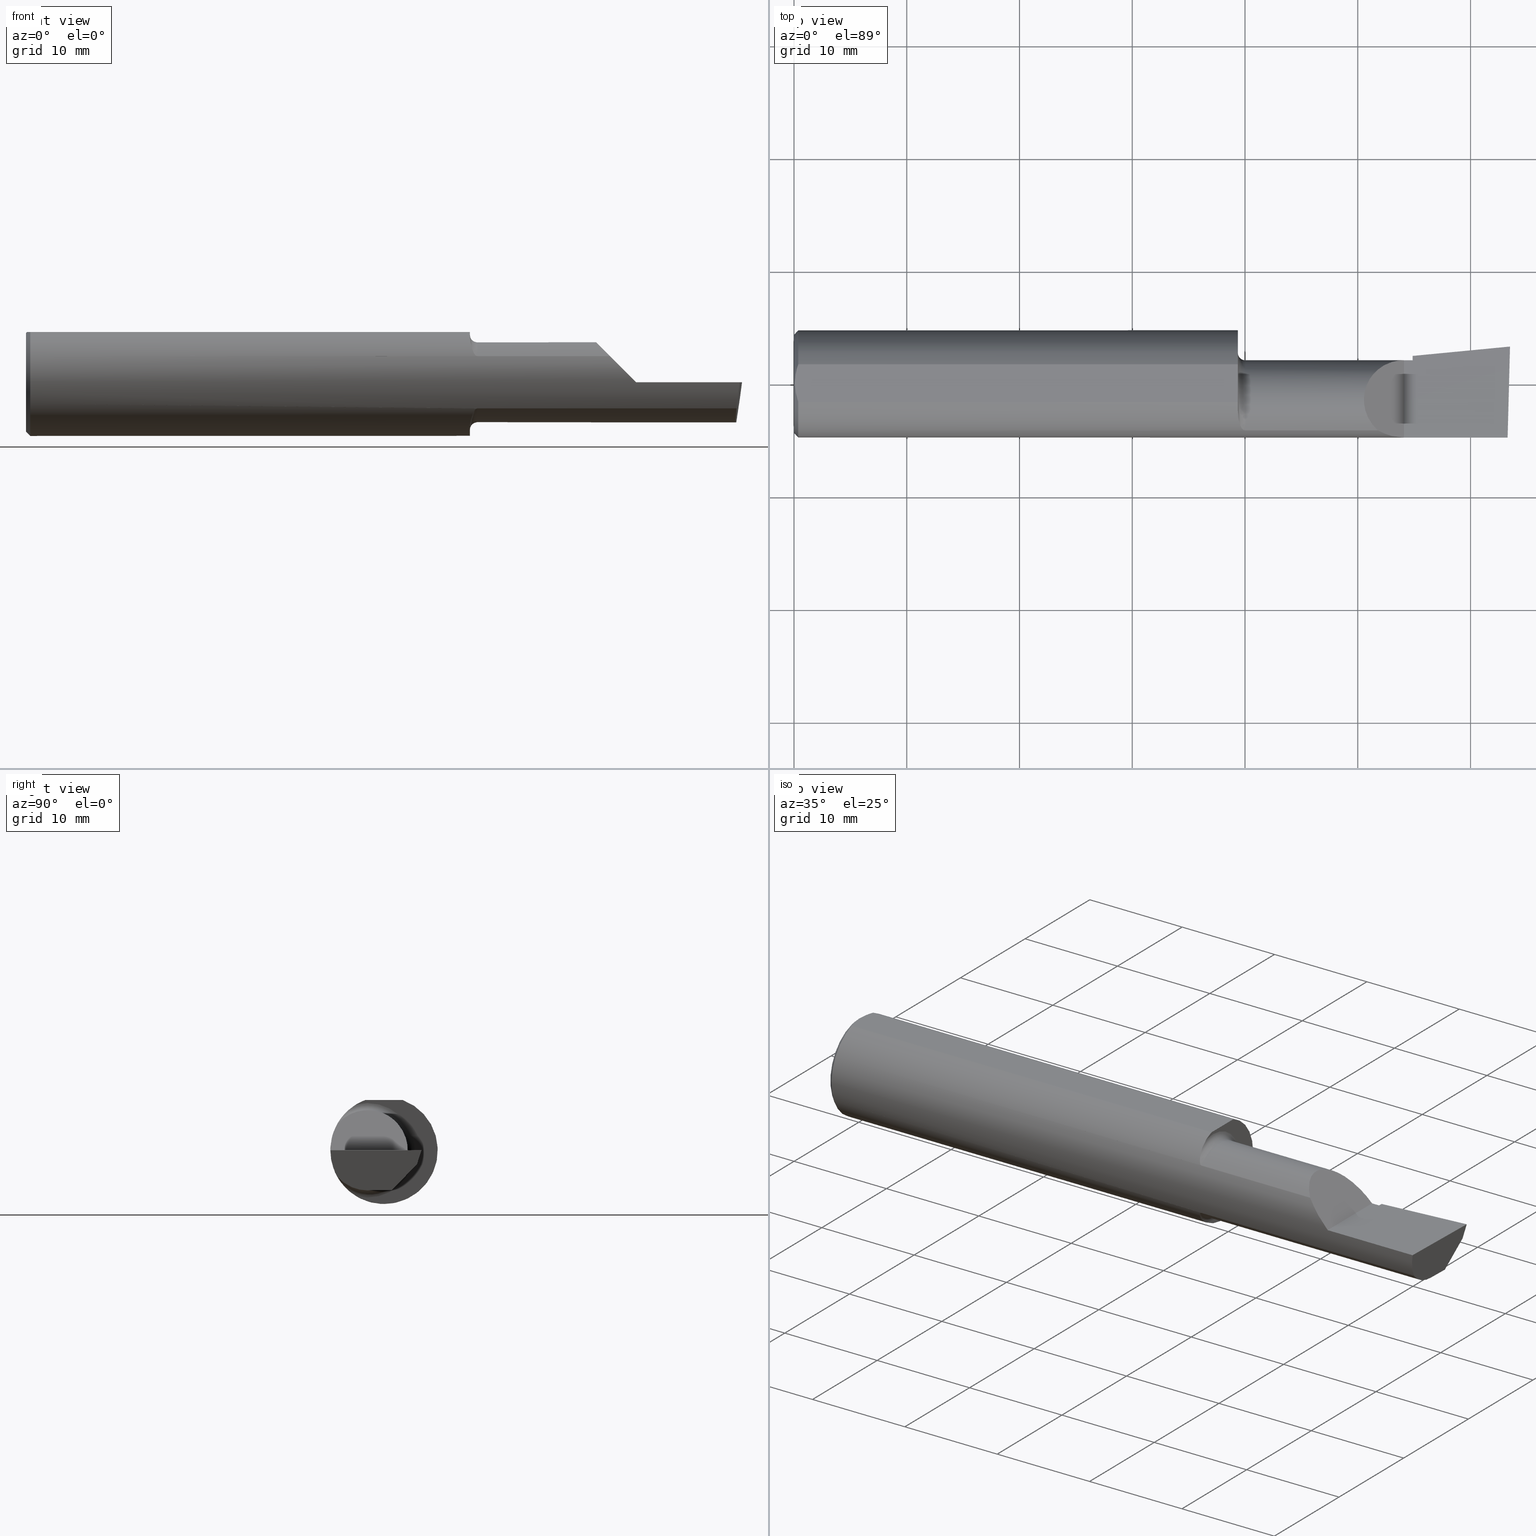
[diagram: canonical four-view strip — front | top / right | iso, engineering-drawing reading convention]
A machine part, canonical four-view strip (front | top / right | iso — engineering-drawing reading convention). The complete STEP part file that produces these views, byte-faithful:
ISO-10303-21;
HEADER;
FILE_DESCRIPTION (( 'STEP AP214' ),
    '1' );
FILE_NAME ('B320900.STEP',
    '2020-05-07T19:09:22',
    ( '' ),
    ( '' ),
    'SwSTEP 2.0',
    'SolidWorks 2018',
    '' );
FILE_SCHEMA (( 'AUTOMOTIVE_DESIGN' ));
ENDSEC;

DATA;
#1 = EDGE_CURVE ( 'NONE', #158, #584, #3, .T. ) ;
#2 = LINE ( 'NONE', #202, #269 ) ;
#3 = B_SPLINE_CURVE_WITH_KNOTS ( 'NONE', 3,
 ( #91, #258, #253, #543, #369, #333, #338, #256, #131, #290, #138, #69, #579, #332 ),
 .UNSPECIFIED., .F., .F.,
 ( 4, 2, 2, 2, 2, 2, 4 ),
 ( 1.968340875534775581E-07, 0.0001667114270246267561, 0.0003332260199617000421, 0.0006662552058358466684, 0.001332313577584133416, 0.001998371949332420489, 0.002664430321080706911 ),
 .UNSPECIFIED. ) ;
#4 = CARTESIAN_POINT ( 'NONE',  ( 2.160000000000000142, -0.05739999999999999963, 0.0000000000000000000 ) ) ;
#5 = CARTESIAN_POINT ( 'NONE',  ( 1.550000000000000044, -0.09715400696864107122, 0.1601908905959925078 ) ) ;
#6 = CARTESIAN_POINT ( 'NONE',  ( 1.556142321956750507, -0.1426151417460928550, 0.1217894822571234659 ) ) ;
#7 = CARTESIAN_POINT ( 'NONE',  ( 1.563764108097883687, -0.1573043405450770260, 0.1018329020719638545 ) ) ;
#8 = CARTESIAN_POINT ( 'NONE',  ( 1.558072954143139732, -0.1479074971576196940, 0.1152872342625233804 ) ) ;
#9 = VERTEX_POINT ( 'NONE', #31 ) ;
#10 = AXIS2_PLACEMENT_3D ( 'NONE', #268, #404, #108 ) ;
#11 = FACE_OUTER_BOUND ( 'NONE', #177, .T. ) ;
#12 = CARTESIAN_POINT ( 'NONE',  ( 2.160000000000000142, 0.09791172361283667636, 0.0000000000000000000 ) ) ;
#13 = DIRECTION ( 'NONE',  ( -0.0000000000000000000, 1.000000000000000000, -0.0000000000000000000 ) ) ;
#14 = ORIENTED_EDGE ( 'NONE', *, *, #209, .T. ) ;
#15 = CARTESIAN_POINT ( 'NONE',  ( 2.160000000000000142, 0.09791172361284176950, 3.244069492476312449E-16 ) ) ;
#16 = DIRECTION ( 'NONE',  ( -0.7071067811865511255, 0.0000000000000000000, 0.7071067811865437980 ) ) ;
#17 = AXIS2_PLACEMENT_3D ( 'NONE', #548, #458, #78 ) ;
#18 = CARTESIAN_POINT ( 'NONE',  ( 1.568001859868117132, -0.1612625562479369223, 0.09537826053888208422 ) ) ;
#19 = VECTOR ( 'NONE', #274, 39.37007874015748143 ) ;
#20 = LINE ( 'NONE', #327, #72 ) ;
#21 = DIRECTION ( 'NONE',  ( 0.0000000000000000000, -1.000000000000000000, 1.776356839400250465E-15 ) ) ;
#22 = ORIENTED_EDGE ( 'NONE', *, *, #263, .T. ) ;
#23 = EDGE_CURVE ( 'NONE', #540, #490, #20, .T. ) ;
#24 = ORIENTED_EDGE ( 'NONE', *, *, #263, .F. ) ;
#25 = ORIENTED_EDGE ( 'NONE', *, *, #549, .T. ) ;
#26 = MECHANICAL_DESIGN_GEOMETRIC_PRESENTATION_REPRESENTATION (  '', ( #379 ), #212 ) ;
#27 = DIRECTION ( 'NONE',  ( -4.858719700838190352E-34, -8.537024980200821325E-17, 1.000000000000000000 ) ) ;
#28 = CARTESIAN_POINT ( 'NONE',  ( 2.160000000000000142, 0.09791172361283667636, 0.0000000000000000000 ) ) ;
#29 = ORIENTED_EDGE ( 'NONE', *, *, #135, .T. ) ;
#30 = PLANE ( 'NONE',  #398 ) ;
#31 = CARTESIAN_POINT ( 'NONE',  ( 1.550000000000000044, -0.06597272163553659363, 0.1753499999999999781 ) ) ;
#32 = EDGE_LOOP ( 'NONE', ( #101, #382, #136, #478, #587 ) ) ;
#33 = ADVANCED_FACE ( 'NONE', ( #75 ), #46, .F. ) ;
#34 = PRESENTATION_LAYER_ASSIGNMENT (  '', '', ( #379 ) ) ;
#35 = DIRECTION ( 'NONE',  ( 4.755568962650852027E-18, -0.6963153109074922131, -0.7177360153954949196 ) ) ;
#36 = AXIS2_PLACEMENT_3D ( 'NONE', #451, #186, #229 ) ;
#37 = ADVANCED_FACE ( 'NONE', ( #64 ), #387, .T. ) ;
#38 = VERTEX_POINT ( 'NONE', #295 ) ;
#39 = LINE ( 'NONE', #94, #19 ) ;
#40 = CARTESIAN_POINT ( 'NONE',  ( 1.566855994529494422, -0.1603175578889967923, 0.09696363432848481567 ) ) ;
#41 =( BOUNDED_CURVE ( )  B_SPLINE_CURVE ( 3, ( #470, #481, #486, #488 ),
 .UNSPECIFIED., .F., .T. ) 
 B_SPLINE_CURVE_WITH_KNOTS ( ( 4, 4 ),
 ( 0.8516985021657653698, 1.360746882515200484 ),
 .UNSPECIFIED. ) 
 CURVE ( )  GEOMETRIC_REPRESENTATION_ITEM ( )  RATIONAL_B_SPLINE_CURVE ( ( 1.000000000000000000, 0.9785221379938656705, 0.9785221379938656705, 1.000000000000000000 ) ) 
 REPRESENTATION_ITEM ( '' )  );
#42 = B_SPLINE_CURVE_WITH_KNOTS ( 'NONE', 3,
 ( #322, #304, #440, #442, #453, #462 ),
 .UNSPECIFIED., .F., .F.,
 ( 4, 2, 4 ),
 ( 0.003480013901590607410, 0.004330767971208083697, 0.005181522040825559984 ),
 .UNSPECIFIED. ) ;
#43 = DIRECTION ( 'NONE',  ( 0.0000000000000000000, -1.438723400918613551E-16, -1.000000000000000000 ) ) ;
#44 = ADVANCED_FACE ( 'NONE', ( #48 ), #30, .T. ) ;
#45 = EDGE_LOOP ( 'NONE', ( #590, #421, #452, #219, #190, #66 ) ) ;
#46 = TOROIDAL_SURFACE ( 'NONE', #17, 0.1650500000000000023, 0.02499999999999994588 ) ;
#47 = ADVANCED_FACE ( 'NONE', ( #172 ), #56, .F. ) ;
#48 = FACE_OUTER_BOUND ( 'NONE', #591, .T. ) ;
#49 = ORIENTED_EDGE ( 'NONE', *, *, #313, .F. ) ;
#50 = CLOSED_SHELL ( 'NONE', ( #165, #37, #160, #96, #115, #155, #207, #107, #47, #147, #33, #150, #110, #44, #88, #102, #99 ) ) ;
#51 = PLANE ( 'NONE',  #417 ) ;
#52 = LINE ( 'NONE', #565, #595 ) ;
#53 = EDGE_CURVE ( 'NONE', #376, #537, #286, .T. ) ;
#54 = DIRECTION ( 'NONE',  ( -0.02617694830779365364, -0.9996573249755593693, -8.535148296544462419E-17 ) ) ;
#55 = ORIENTED_EDGE ( 'NONE', *, *, #427, .T. ) ;
#56 = PLANE ( 'NONE',  #517 ) ;
#57 = AXIS2_PLACEMENT_3D ( 'NONE', #436, #142, #130 ) ;
#58 = CIRCLE ( 'NONE', #528, 0.1400499999999999801 ) ;
#59 = LINE ( 'NONE', #507, #109 ) ;
#60 = CARTESIAN_POINT ( 'NONE',  ( 1.553025912205683312, -0.1310442973014112888, 0.1341609063345044761 ) ) ;
#61 = COLOUR_RGB ( '',0.7529411764705882248, 0.7529411764705882248, 0.7529411764705882248 ) ;
#62 = CARTESIAN_POINT ( 'NONE',  ( 0.5470260790800316464, -0.05740000000000000657, 2.701812985571356346E-16 ) ) ;
#63 = EDGE_CURVE ( 'NONE', #328, #490, #533, .T. ) ;
#64 = FACE_OUTER_BOUND ( 'NONE', #569, .T. ) ;
#65 = CARTESIAN_POINT ( 'NONE',  ( 2.129999999999999893, -0.2500000000000000555, 1.065442715258197396E-16 ) ) ;
#66 = ORIENTED_EDGE ( 'NONE', *, *, #477, .F. ) ;
#67 = ORIENTED_EDGE ( 'NONE', *, *, #427, .F. ) ;
#68 = CARTESIAN_POINT ( 'NONE',  ( 2.477889026591898247, -0.05682100378451882677, -0.1400500000000000633 ) ) ;
#69 = CARTESIAN_POINT ( 'NONE',  ( 1.550384441902395327, -0.1115101367984837610, -0.1507946173152225067 ) ) ;
#70 = DIRECTION ( 'NONE',  ( -1.000000000000000000, -0.0000000000000000000, -0.0000000000000000000 ) ) ;
#71 = CARTESIAN_POINT ( 'NONE',  ( 2.160000000000000142, -0.2500000000000000555, 1.034430765243970311E-16 ) ) ;
#72 = VECTOR ( 'NONE', #430, 39.37007874015748854 ) ;
#73 = DIRECTION ( 'NONE',  ( 4.755568962650852027E-18, -0.6963153109074922131, -0.7177360153954949196 ) ) ;
#74 = VECTOR ( 'NONE', #288, 39.37007874015748143 ) ;
#75 = FACE_OUTER_BOUND ( 'NONE', #392, .T. ) ;
#76 = AXIS2_PLACEMENT_3D ( 'NONE', #450, #43, #104 ) ;
#77 = CARTESIAN_POINT ( 'NONE',  ( 2.160000000000000142, 0.06382066673065316109, -0.06931012851386068874 ) ) ;
#78 = DIRECTION ( 'NONE',  ( 6.829619984160658816E-18, -1.000000000000000000, 0.0000000000000000000 ) ) ;
#79 = ORIENTED_EDGE ( 'NONE', *, *, #310, .T. ) ;
#80 = LINE ( 'NONE', #568, #242 ) ;
#81 = CARTESIAN_POINT ( 'NONE',  ( 2.129999999999999893, -0.2500000000000000555, 1.065442715258197396E-16 ) ) ;
#82 = VECTOR ( 'NONE', #586, 39.37007874015748854 ) ;
#83 = CARTESIAN_POINT ( 'NONE',  ( 2.129999999999999893, 0.08264999999999983471, 1.065442715258197396E-16 ) ) ;
#84 = LINE ( 'NONE', #71, #596 ) ;
#85 = PRESENTATION_STYLE_ASSIGNMENT (( #506 ) ) ;
#86 = VERTEX_POINT ( 'NONE', #502 ) ;
#87 = EDGE_CURVE ( 'NONE', #401, #328, #389, .T. ) ;
#88 = ADVANCED_FACE ( 'NONE', ( #164 ), #422, .T. ) ;
#89 = ORIENTED_EDGE ( 'NONE', *, *, #97, .T. ) ;
#90 = DIRECTION ( 'NONE',  ( 6.829619984160658046E-18, -1.000000000000000000, 0.0000000000000000000 ) ) ;
#91 = CARTESIAN_POINT ( 'NONE',  ( 1.574999999999999956, -0.1635956445993029529, -0.09130436773856180632 ) ) ;
#92 = ORIENTED_EDGE ( 'NONE', *, *, #63, .T. ) ;
#93 = CARTESIAN_POINT ( 'NONE',  ( 2.160000000000000142, 0.06495571228477940717, -0.06814016562413301170 ) ) ;
#94 = CARTESIAN_POINT ( 'NONE',  ( 1.867500000000000160, -0.1635956445993030639, -0.09130436773856169530 ) ) ;
#95 = DIRECTION ( 'NONE',  ( -1.000000000000000000, -6.829619984160658046E-18, 0.0000000000000000000 ) ) ;
#96 = ADVANCED_FACE ( 'NONE', ( #599 ), #244, .F. ) ;
#97 = EDGE_CURVE ( 'NONE', #271, #474, #139, .T. ) ;
#98 = DIRECTION ( 'NONE',  ( 1.000000000000000000, 6.829619984160658046E-18, 0.0000000000000000000 ) ) ;
#99 = ADVANCED_FACE ( 'NONE', ( #277 ), #51, .F. ) ;
#100 = CARTESIAN_POINT ( 'NONE',  ( 1.570903862568969078, -0.1628809688430619407, 0.09258733509388515637 ) ) ;
#101 = ORIENTED_EDGE ( 'NONE', *, *, #357, .F. ) ;
#102 = ADVANCED_FACE ( 'NONE', ( #585 ), #416, .F. ) ;
#103 = ORIENTED_EDGE ( 'NONE', *, *, #310, .F. ) ;
#104 = DIRECTION ( 'NONE',  ( 0.0000000000000000000, 1.000000000000000000, -1.438723400918613551E-16 ) ) ;
#105 = CARTESIAN_POINT ( 'NONE',  ( 1.574999999999999956, -0.05740000000000000657, 0.0000000000000000000 ) ) ;
#106 = ORIENTED_EDGE ( 'NONE', *, *, #441, .F. ) ;
#107 = ADVANCED_FACE ( 'NONE', ( #383 ), #176, .F. ) ;
#108 = DIRECTION ( 'NONE',  ( 0.0000000000000000000, 0.0000000000000000000, -1.000000000000000000 ) ) ;
#109 = VECTOR ( 'NONE', #532, 39.37007874015748143 ) ;
#110 = ADVANCED_FACE ( 'NONE', ( #334 ), #126, .T. ) ;
#111 = B_SPLINE_CURVE_WITH_KNOTS ( 'NONE', 3,
 ( #335, #292, #267, #340, #349, #388 ),
 .UNSPECIFIED., .F., .F.,
 ( 4, 2, 4 ),
 ( 0.001779942938356815062, 0.002629978419973711019, 0.003480013901590607410 ),
 .UNSPECIFIED. ) ;
#112 = DIRECTION ( 'NONE',  ( 1.000000000000000000, 6.829619984160658046E-18, 0.0000000000000000000 ) ) ;
#113 = CIRCLE ( 'NONE', #435, 0.1723499999999996424 ) ;
#114 = DIRECTION ( 'NONE',  ( -1.000000000000000000, -6.829619984160658046E-18, -0.0000000000000000000 ) ) ;
#115 = ADVANCED_FACE ( 'NONE', ( #395 ), #372, .T. ) ;
#116 = ORIENTED_EDGE ( 'NONE', *, *, #87, .T. ) ;
#117 = UNCERTAINTY_MEASURE_WITH_UNIT (LENGTH_MEASURE( 1.000000000000000082E-05 ), #420, 'distance_accuracy_value', 'NONE');
#118 = DIRECTION ( 'NONE',  ( -6.829619984160658816E-18, 1.000000000000000000, 7.059994452165177242E-34 ) ) ;
#119 = CARTESIAN_POINT ( 'NONE',  ( 2.500000000000000000, -0.2500000000000000555, 6.829619984160658046E-17 ) ) ;
#120 = EDGE_LOOP ( 'NONE', ( #425, #497, #431, #588, #246 ) ) ;
#121 = DIRECTION ( 'NONE',  ( 0.0000000000000000000, -1.000000000000000000, 0.0000000000000000000 ) ) ;
#122 = ORIENTED_EDGE ( 'NONE', *, *, #381, .T. ) ;
#123 = LINE ( 'NONE', #306, #428 ) ;
#124 = ORIENTED_EDGE ( 'NONE', *, *, #529, .F. ) ;
#125 = DIRECTION ( 'NONE',  ( 1.000000000000000000, 0.0000000000000000000, 0.0000000000000000000 ) ) ;
#126 = CYLINDRICAL_SURFACE ( 'NONE', #346, 0.1400499999999999801 ) ;
#127 = CARTESIAN_POINT ( 'NONE',  ( 1.550000000000000044, 0.2373500000000000332, 0.1753499999999999504 ) ) ;
#128 = CARTESIAN_POINT ( 'NONE',  ( 0.0000000000000000000, 0.0000000000000000000, 0.0000000000000000000 ) ) ;
#129 = VECTOR ( 'NONE', #205, 39.37007874015748143 ) ;
#130 = DIRECTION ( 'NONE',  ( 0.0000000000000000000, 0.0000000000000000000, 1.000000000000000000 ) ) ;
#131 = CARTESIAN_POINT ( 'NONE',  ( 1.556145841430604637, -0.1426194794824337253, -0.1217813759115470157 ) ) ;
#132 = AXIS2_PLACEMENT_3D ( 'NONE', #505, #513, #191 ) ;
#133 = CARTESIAN_POINT ( 'NONE',  ( 1.550000000000000044, -0.05740000000000000657, 0.0000000000000000000 ) ) ;
#134 = CARTESIAN_POINT ( 'NONE',  ( 2.511419111345317923, 0.1163922996227946260, -0.04999999999999999584 ) ) ;
#135 = EDGE_CURVE ( 'NONE', #567, #251, #356, .T. ) ;
#136 = ORIENTED_EDGE ( 'NONE', *, *, #374, .F. ) ;
#137 = DIRECTION ( 'NONE',  ( -1.000000000000000000, -6.829619984160658046E-18, -0.0000000000000000000 ) ) ;
#138 = CARTESIAN_POINT ( 'NONE',  ( 1.551903396790307310, -0.1248165254919059441, -0.1399798634953948739 ) ) ;
#139 = LINE ( 'NONE', #377, #174 ) ;
#140 = DIRECTION ( 'NONE',  ( 0.0000000000000000000, -1.000000000000000000, 0.0000000000000000000 ) ) ;
#141 = ORIENTED_EDGE ( 'NONE', *, *, #299, .T. ) ;
#142 = DIRECTION ( 'NONE',  ( -1.000000000000000000, -0.0000000000000000000, -0.0000000000000000000 ) ) ;
#143 = FILL_AREA_STYLE ('',( #194 ) ) ;
#144 = LINE ( 'NONE', #127, #446 ) ;
#145 = SURFACE_SIDE_STYLE ('',( #476 ) ) ;
#146 = SURFACE_STYLE_USAGE ( .BOTH. , #145 ) ;
#147 = ADVANCED_FACE ( 'NONE', ( #494 ), #169, .T. ) ;
#148 = AXIS2_PLACEMENT_3D ( 'NONE', #510, #511, #516 ) ;
#149 =( CONVERSION_BASED_UNIT ( 'INCH', #179 ) LENGTH_UNIT ( ) NAMED_UNIT ( #211 ) );
#150 = ADVANCED_FACE ( 'NONE', ( #386 ), #293, .T. ) ;
#151 =( NAMED_UNIT ( * ) PLANE_ANGLE_UNIT ( ) SI_UNIT ( $, .RADIAN. ) );
#152 = EDGE_CURVE ( 'NONE', #180, #251, #534, .T. ) ;
#153 = VECTOR ( 'NONE', #73, 39.37007874015748854 ) ;
#154 = DIRECTION ( 'NONE',  ( 0.9953961983671787417, 0.09584575252022459191, -1.028972571603813720E-16 ) ) ;
#155 = ADVANCED_FACE ( 'NONE', ( #405 ), #593, .F. ) ;
#156 =( NAMED_UNIT ( * ) SI_UNIT ( $, .STERADIAN. ) SOLID_ANGLE_UNIT ( ) );
#157 = AXIS2_PLACEMENT_3D ( 'NONE', #232, #181, #339 ) ;
#158 = VERTEX_POINT ( 'NONE', #214 ) ;
#159 = SURFACE_STYLE_FILL_AREA ( #457 ) ;
#160 = ADVANCED_FACE ( 'NONE', ( #547 ), #495, .T. ) ;
#161 = CARTESIAN_POINT ( 'NONE',  ( 2.160000000000000142, 0.06382066673065316109, -0.06931012851386068874 ) ) ;
#162 = CARTESIAN_POINT ( 'NONE',  ( 1.574999999999999956, -0.1635956445993027031, 0.09130436773856204224 ) ) ;
#163 = ORIENTED_EDGE ( 'NONE', *, *, #556, .F. ) ;
#164 = FACE_OUTER_BOUND ( 'NONE', #45, .T. ) ;
#165 = ADVANCED_FACE ( 'NONE', ( #282 ), #484, .T. ) ;
#166 = B_SPLINE_CURVE_WITH_KNOTS ( 'NONE', 3,
 ( #5, #391, #226, #255, #60, #6, #8, #359, #7, #40, #18, #100, #236, #445 ),
 .UNSPECIFIED., .F., .F.,
 ( 4, 2, 2, 2, 2, 2, 4 ),
 ( 0.0002471551878304213972, 0.0008987327522055595184, 0.001550310316580697694, 0.002201887880955836086, 0.002527676663143405607, 0.002690571054237190368, 0.002853465445330975996 ),
 .UNSPECIFIED. ) ;
#167 = LINE ( 'NONE', #161, #308 ) ;
#168 = DIRECTION ( 'NONE',  ( 4.755568962650852027E-18, -0.6963153109074922131, -0.7177360153954949196 ) ) ;
#169 = CONICAL_SURFACE ( 'NONE', #132, 0.1873499999999999888, 0.7853981633974602694 ) ;
#170 = ORIENTED_EDGE ( 'NONE', *, *, #394, .T. ) ;
#171 = CARTESIAN_POINT ( 'NONE',  ( 2.491672876940991710, -0.1873499999999999888, 6.915950918908297591E-17 ) ) ;
#172 = FACE_OUTER_BOUND ( 'NONE', #519, .T. ) ;
#173 = CARTESIAN_POINT ( 'NONE',  ( 2.500000000000000000, -0.05739999999999999963, -0.1400500000000000633 ) ) ;
#174 = VECTOR ( 'NONE', #250, 39.37007874015748854 ) ;
#175 = CARTESIAN_POINT ( 'NONE',  ( 2.038695632261437130, -0.1635956445993029529, 0.09130436773856188959 ) ) ;
#176 = PLANE ( 'NONE',  #368 ) ;
#177 = EDGE_LOOP ( 'NONE', ( #509, #89, #396, #355, #400, #390 ) ) ;
#178 = CARTESIAN_POINT ( 'NONE',  ( 2.160000000000000142, 0.09456875743780476795, -0.01088401009027229437 ) ) ;
#179 = LENGTH_MEASURE_WITH_UNIT ( LENGTH_MEASURE( 0.02539999999999999897 ), #188 );
#180 = VERTEX_POINT ( 'NONE', #162 ) ;
#181 = DIRECTION ( 'NONE',  ( -1.000000000000000000, -6.829619984160658046E-18, -0.0000000000000000000 ) ) ;
#182 = VERTEX_POINT ( 'NONE', #343 ) ;
#183 = CARTESIAN_POINT ( 'NONE',  ( 1.921229036482944075, -0.06260079402492431389, 0.2087709635170537925 ) ) ;
#184 = LINE ( 'NONE', #213, #74 ) ;
#185 = CARTESIAN_POINT ( 'NONE',  ( 1.975085956200449022, 0.08264999999999997349, 0.1549140437995493169 ) ) ;
#186 = DIRECTION ( 'NONE',  ( -1.000000000000000000, -6.829619984160658046E-18, 0.0000000000000000000 ) ) ;
#187 = EDGE_CURVE ( 'NONE', #86, #158, #39, .T. ) ;
#188 =( LENGTH_UNIT ( ) NAMED_UNIT ( * ) SI_UNIT ( $, .METRE. ) );
#189 = CARTESIAN_POINT ( 'NONE',  ( 2.129999999999999893, 0.08264999999999983471, 1.065442715258197396E-16 ) ) ;
#190 = ORIENTED_EDGE ( 'NONE', *, *, #303, .F. ) ;
#191 = DIRECTION ( 'NONE',  ( 0.0000000000000000000, 0.0000000000000000000, -1.000000000000000000 ) ) ;
#192 = FILL_AREA_STYLE_COLOUR ( '', #61 ) ;
#193 =( GEOMETRIC_REPRESENTATION_CONTEXT ( 3 ) GLOBAL_UNCERTAINTY_ASSIGNED_CONTEXT ( ( #117 ) ) GLOBAL_UNIT_ASSIGNED_CONTEXT ( ( #420, #371, #409 ) ) REPRESENTATION_CONTEXT ( 'NONE', 'WORKASPACE' ) );
#194 = FILL_AREA_STYLE_COLOUR ( '', #287 ) ;
#195 = AXIS2_PLACEMENT_3D ( 'NONE', #133, #137, #140 ) ;
#196 = VECTOR ( 'NONE', #577, 39.37007874015748143 ) ;
#197 = DIRECTION ( 'NONE',  ( -0.9922060308645608284, 0.02598182930461468559, 0.1218693434050591162 ) ) ;
#198 = ORIENTED_EDGE ( 'NONE', *, *, #394, .F. ) ;
#199 = CARTESIAN_POINT ( 'NONE',  ( 1.550000000000000044, 0.1076499999999999818, 0.0000000000000000000 ) ) ;
#200 = CIRCLE ( 'NONE', #195, 0.1650500000000000023 ) ;
#201 = ADVANCED_BREP_SHAPE_REPRESENTATION ( 'B320900', ( #301, #525 ), #193 ) ;
#202 = CARTESIAN_POINT ( 'NONE',  ( 3.377502344341257155E-32, -0.1873499999999999610, 3.267291166268304703E-16 ) ) ;
#203 = DIRECTION ( 'NONE',  ( -1.000000000000000000, -6.829619984160658046E-18, 0.0000000000000000000 ) ) ;
#204 = CIRCLE ( 'NONE', #323, 0.1873499999999999888 ) ;
#205 = DIRECTION ( 'NONE',  ( 2.005228508682076666E-18, -0.2936076258024060692, -0.9559260233253795702 ) ) ;
#206 = LINE ( 'NONE', #331, #399 ) ;
#207 = ADVANCED_FACE ( 'NONE', ( #11 ), #218, .F. ) ;
#208 = AXIS2_PLACEMENT_3D ( 'NONE', #270, #275, #260 ) ;
#209 = EDGE_CURVE ( 'NONE', #309, #401, #123, .T. ) ;
#210 = LINE ( 'NONE', #62, #336 ) ;
#211 = DIMENSIONAL_EXPONENTS ( 1.000000000000000000, 0.0000000000000000000, 0.0000000000000000000, 0.0000000000000000000, 0.0000000000000000000, 0.0000000000000000000, 0.0000000000000000000 ) ;
#212 =( GEOMETRIC_REPRESENTATION_CONTEXT ( 3 ) GLOBAL_UNCERTAINTY_ASSIGNED_CONTEXT ( ( #447 ) ) GLOBAL_UNIT_ASSIGNED_CONTEXT ( ( #149, #151, #156 ) ) REPRESENTATION_CONTEXT ( 'NONE', 'WORKASPACE' ) );
#213 = CARTESIAN_POINT ( 'NONE',  ( 0.0000000000000000000, -0.06597272163553657975, 0.1753499999999999781 ) ) ;
#214 = CARTESIAN_POINT ( 'NONE',  ( 1.574999999999999956, -0.1635956445993029529, -0.09130436773856180632 ) ) ;
#215 = ORIENTED_EDGE ( 'NONE', *, *, #411, .T. ) ;
#216 = VECTOR ( 'NONE', #385, 39.37007874015748143 ) ;
#217 = DIRECTION ( 'NONE',  ( 1.000000000000000000, 6.829619984160658046E-18, 0.0000000000000000000 ) ) ;
#218 = PLANE ( 'NONE',  #315 ) ;
#219 = ORIENTED_EDGE ( 'NONE', *, *, #209, .F. ) ;
#220 = CARTESIAN_POINT ( 'NONE',  ( 2.160000000000000142, -0.05739999999999999963, -0.1400500000000000633 ) ) ;
#221 = ORIENTED_EDGE ( 'NONE', *, *, #357, .T. ) ;
#222 = DIMENSIONAL_EXPONENTS ( 1.000000000000000000, 0.0000000000000000000, 0.0000000000000000000, 0.0000000000000000000, 0.0000000000000000000, 0.0000000000000000000, 0.0000000000000000000 ) ;
#223 = VECTOR ( 'NONE', #479, 39.37007874015748143 ) ;
#224 = EDGE_LOOP ( 'NONE', ( #443, #22, #170, #92 ) ) ;
#225 = AXIS2_PLACEMENT_3D ( 'NONE', #28, #95, #90 ) ;
#226 = CARTESIAN_POINT ( 'NONE',  ( 1.550383728133730266, -0.1114837668894149980, 0.1508119329971097933 ) ) ;
#227 = ORIENTED_EDGE ( 'NONE', *, *, #53, .T. ) ;
#228 = EDGE_CURVE ( 'NONE', #38, #180, #166, .T. ) ;
#229 = DIRECTION ( 'NONE',  ( 6.829619984160658046E-18, -1.000000000000000000, 0.0000000000000000000 ) ) ;
#230 = VECTOR ( 'NONE', #13, 39.37007874015748143 ) ;
#231 = CARTESIAN_POINT ( 'NONE',  ( 2.481080296960508580, -0.1635956445993030639, -0.09130436773856169530 ) ) ;
#232 = CARTESIAN_POINT ( 'NONE',  ( 2.160000000000000142, -0.05739999999999999963, 0.0000000000000000000 ) ) ;
#233 = CARTESIAN_POINT ( 'NONE',  ( 2.477925907309857401, -0.1365595166907236646, -0.1227499502647107360 ) ) ;
#234 = ORIENTED_EDGE ( 'NONE', *, *, #365, .F. ) ;
#235 = ORIENTED_EDGE ( 'NONE', *, *, #321, .T. ) ;
#236 = CARTESIAN_POINT ( 'NONE',  ( 1.572800914500664504, -0.1635956445997546749, 0.09130436773775280068 ) ) ;
#237 = EDGE_LOOP ( 'NONE', ( #554, #24, #272, #472, #345, #311 ) ) ;
#238 = CARTESIAN_POINT ( 'NONE',  ( 1.550000000000000044, -0.09715400696864107122, -0.1601908905959925078 ) ) ;
#239 = DIRECTION ( 'NONE',  ( -1.000000000000000000, -6.829619984160658046E-18, -0.0000000000000000000 ) ) ;
#240 = PRODUCT_DEFINITION_CONTEXT ( 'detailed design', #508, 'design' ) ;
#241 = CARTESIAN_POINT ( 'NONE',  ( 0.0000000000000000000, 0.0000000000000000000, 0.0000000000000000000 ) ) ;
#242 = VECTOR ( 'NONE', #570, 39.37007874015748143 ) ;
#243 = DIRECTION ( 'NONE',  ( -1.000000000000000000, -0.0000000000000000000, -0.0000000000000000000 ) ) ;
#244 = PLANE ( 'NONE',  #575 ) ;
#245 = DIRECTION ( 'NONE',  ( 0.0000000000000000000, 0.0000000000000000000, 1.000000000000000000 ) ) ;
#246 = ORIENTED_EDGE ( 'NONE', *, *, #455, .F. ) ;
#247 = DIRECTION ( 'NONE',  ( 6.829619984160658046E-18, -1.000000000000000000, 0.0000000000000000000 ) ) ;
#248 = CARTESIAN_POINT ( 'NONE',  ( 2.476787929832031221, -0.09887019258091189755, -0.1400500000000000078 ) ) ;
#249 = AXIS2_PLACEMENT_3D ( 'NONE', #105, #114, #121 ) ;
#250 = DIRECTION ( 'NONE',  ( 0.02617694830779364323, 0.9996573249755593693, -2.665804247635780349E-18 ) ) ;
#251 = VERTEX_POINT ( 'NONE', #252 ) ;
#252 = CARTESIAN_POINT ( 'NONE',  ( 2.038695632261437130, -0.1635956445993029529, 0.09130436773856188959 ) ) ;
#253 = CARTESIAN_POINT ( 'NONE',  ( 1.570881499230870171, -0.1628722075910989664, -0.09260290410947892570 ) ) ;
#254 = ORIENTED_EDGE ( 'NONE', *, *, #299, .F. ) ;
#255 = CARTESIAN_POINT ( 'NONE',  ( 1.551891754936544743, -0.1247344934163565761, 0.1400506178720502815 ) ) ;
#256 = CARTESIAN_POINT ( 'NONE',  ( 1.558068207442171227, -0.1478915270140208627, -0.1153063024254926960 ) ) ;
#257 = VERTEX_POINT ( 'NONE', #15 ) ;
#258 = CARTESIAN_POINT ( 'NONE',  ( 1.572779935319434719, -0.1635956445993029529, -0.09130436773856194510 ) ) ;
#259 = STYLED_ITEM ( 'NONE', ( #85 ), #201 ) ;
#260 = DIRECTION ( 'NONE',  ( 0.0000000000000000000, 0.0000000000000000000, 1.000000000000000000 ) ) ;
#261 = VERTEX_POINT ( 'NONE', #527 ) ;
#262 = DIMENSIONAL_EXPONENTS ( 1.000000000000000000, 0.0000000000000000000, 0.0000000000000000000, 0.0000000000000000000, 0.0000000000000000000, 0.0000000000000000000, 0.0000000000000000000 ) ;
#263 = EDGE_CURVE ( 'NONE', #540, #182, #397, .T. ) ;
#264 = LENGTH_MEASURE_WITH_UNIT ( LENGTH_MEASURE( 0.02539999999999999897 ), #475 );
#265 = EDGE_CURVE ( 'NONE', #271, #567, #2, .T. ) ;
#266 = ORIENTED_EDGE ( 'NONE', *, *, #265, .T. ) ;
#267 = CARTESIAN_POINT ( 'NONE',  ( 0.008227791779583789808, -0.04447712204611815878, 0.1753499999999999781 ) ) ;
#268 = CARTESIAN_POINT ( 'NONE',  ( 0.01499999999999999424, 0.0000000000000000000, 0.0000000000000000000 ) ) ;
#269 = VECTOR ( 'NONE', #70, 39.37007874015748143 ) ;
#270 = CARTESIAN_POINT ( 'NONE',  ( 0.01499999999999999424, 0.0000000000000000000, 0.0000000000000000000 ) ) ;
#271 = VERTEX_POINT ( 'NONE', #171 ) ;
#272 = ORIENTED_EDGE ( 'NONE', *, *, #463, .T. ) ;
#273 = DIRECTION ( 'NONE',  ( 1.000000000000000000, 0.0000000000000000000, 0.0000000000000000000 ) ) ;
#274 = DIRECTION ( 'NONE',  ( -1.000000000000000000, -6.829619984160658046E-18, -0.0000000000000000000 ) ) ;
#275 = DIRECTION ( 'NONE',  ( -1.000000000000000000, -0.0000000000000000000, -0.0000000000000000000 ) ) ;
#276 = LINE ( 'NONE', #393, #223 ) ;
#277 = FACE_OUTER_BOUND ( 'NONE', #237, .T. ) ;
#278 = CARTESIAN_POINT ( 'NONE',  ( 0.0000000000000000000, 0.0000000000000000000, 0.0000000000000000000 ) ) ;
#279 = DIRECTION ( 'NONE',  ( 1.000000000000000000, 6.829619984160658046E-18, 0.0000000000000000000 ) ) ;
#280 = ORIENTED_EDGE ( 'NONE', *, *, #477, .T. ) ;
#281 = CARTESIAN_POINT ( 'NONE',  ( 0.0000000000000000000, 0.06597272163553663527, 0.1753499999999999781 ) ) ;
#282 = FACE_OUTER_BOUND ( 'NONE', #120, .T. ) ;
#283 = CARTESIAN_POINT ( 'NONE',  ( 2.038695632261437130, -0.1635956445993029529, 0.09130436773856188959 ) ) ;
#284 = ORIENTED_EDGE ( 'NONE', *, *, #152, .F. ) ;
#285 = EDGE_CURVE ( 'NONE', #401, #490, #410, .T. ) ;
#286 = CIRCLE ( 'NONE', #498, 0.1723499999999996424 ) ;
#287 = COLOUR_RGB ( '',0.7529411764705882248, 0.7529411764705882248, 0.7529411764705882248 ) ;
#288 = DIRECTION ( 'NONE',  ( -1.000000000000000000, -0.0000000000000000000, -0.0000000000000000000 ) ) ;
#289 = VERTEX_POINT ( 'NONE', #83 ) ;
#290 = CARTESIAN_POINT ( 'NONE',  ( 1.553041727949557638, -0.1311116946065050415, -0.1340922927843371804 ) ) ;
#291 = CARTESIAN_POINT ( 'NONE',  ( 0.003000000000000218638, 2.334609556160449697E-17, 0.1753499999999999781 ) ) ;
#292 = CARTESIAN_POINT ( 'NONE',  ( 0.01128414053810044941, -0.05542038647445821781, 0.1753499999999999781 ) ) ;
#293 = PLANE ( 'NONE',  #403 ) ;
#294 = VECTOR ( 'NONE', #273, 39.37007874015748143 ) ;
#295 = CARTESIAN_POINT ( 'NONE',  ( 1.550000000000000044, -0.09715400696864107122, 0.1601908905959925078 ) ) ;
#296 =( GEOMETRIC_REPRESENTATION_CONTEXT ( 3 ) GLOBAL_UNCERTAINTY_ASSIGNED_CONTEXT ( ( #373 ) ) GLOBAL_UNIT_ASSIGNED_CONTEXT ( ( #541, #526, #499 ) ) REPRESENTATION_CONTEXT ( 'NONE', 'WORKASPACE' ) );
#297 = PRODUCT_DEFINITION_SHAPE ( 'NONE', 'NONE',  #473 ) ;
#298 = EDGE_CURVE ( 'NONE', #366, #257, #84, .T. ) ;
#299 = EDGE_CURVE ( 'NONE', #38, #584, #200, .T. ) ;
#300 = LINE ( 'NONE', #438, #216 ) ;
#301 = MANIFOLD_SOLID_BREP ( '48616C45-47F1-4dd1-A8EC-CA3E686F733A-GAAFaceID8', #50 ) ;
#302 = ORIENTED_EDGE ( 'NONE', *, *, #455, .T. ) ;
#303 = EDGE_CURVE ( 'NONE', #592, #309, #167, .T. ) ;
#304 = CARTESIAN_POINT ( 'NONE',  ( 0.003000000000000169632, 0.01127363201155560934, 0.1753499999999999781 ) ) ;
#305 = CARTESIAN_POINT ( 'NONE',  ( 2.129999999999999893, -0.1873499999999999888, 1.065442715258197396E-16 ) ) ;
#306 = CARTESIAN_POINT ( 'NONE',  ( 2.160000000000000142, 0.06382066673065316109, -0.06931012851386068874 ) ) ;
#307 = CARTESIAN_POINT ( 'NONE',  ( 2.509953961983671711, 0.1316084575252021438, -6.829619984160658046E-17 ) ) ;
#308 = VECTOR ( 'NONE', #168, 39.37007874015748854 ) ;
#309 = VERTEX_POINT ( 'NONE', #93 ) ;
#310 = EDGE_CURVE ( 'NONE', #251, #289, #551, .T. ) ;
#311 = ORIENTED_EDGE ( 'NONE', *, *, #381, .F. ) ;
#312 = DIRECTION ( 'NONE',  ( 6.829619984160658046E-18, -1.000000000000000000, 1.438723400918613551E-16 ) ) ;
#313 = EDGE_CURVE ( 'NONE', #257, #592, #487, .T. ) ;
#314 = EDGE_LOOP ( 'NONE', ( #465, #122, #266, #29, #284, #330, #542, #558, #163, #234, #354, #459, #317 ) ) ;
#315 = AXIS2_PLACEMENT_3D ( 'NONE', #119, #325, #361 ) ;
#316 = ORIENTED_EDGE ( 'NONE', *, *, #456, .T. ) ;
#317 = ORIENTED_EDGE ( 'NONE', *, *, #1, .F. ) ;
#318 = PRODUCT ( 'B320900', 'B320900', '', ( #557 ) ) ;
#319 = DIRECTION ( 'NONE',  ( -6.829619984160658046E-18, 1.000000000000000000, 0.0000000000000000000 ) ) ;
#320 = CIRCLE ( 'NONE', #57, 0.1873499999999999888 ) ;
#321 = EDGE_CURVE ( 'NONE', #537, #376, #113, .T. ) ;
#322 = CARTESIAN_POINT ( 'NONE',  ( 0.003000000000000218638, 2.334609556160449697E-17, 0.1753499999999999781 ) ) ;
#323 = AXIS2_PLACEMENT_3D ( 'NONE', #520, #522, #530 ) ;
#324 = CARTESIAN_POINT ( 'NONE',  ( 2.160000000000000142, 0.08255448787293401258, -0.04999999999999999584 ) ) ;
#325 = DIRECTION ( 'NONE',  ( -1.033731667140896077E-16, 0.0000000000000000000, -1.000000000000000000 ) ) ;
#326 = EDGE_CURVE ( 'NONE', #86, #182, #347, .T. ) ;
#327 = CARTESIAN_POINT ( 'NONE',  ( 2.491859106488688358, 0.02714641170210416524, -0.1400500000000000633 ) ) ;
#328 = VERTEX_POINT ( 'NONE', #220 ) ;
#329 = CARTESIAN_POINT ( 'NONE',  ( 2.097861799102314961, -0.1873500000000000165, 0.03213820089768509858 ) ) ;
#330 = ORIENTED_EDGE ( 'NONE', *, *, #228, .F. ) ;
#331 = CARTESIAN_POINT ( 'NONE',  ( -9.564882787816662316E-19, 0.08264999999999995961, 3.267291166268304703E-16 ) ) ;
#332 = CARTESIAN_POINT ( 'NONE',  ( 1.550000000000000044, -0.09715400696864107122, -0.1601908905959925078 ) ) ;
#333 = CARTESIAN_POINT ( 'NONE',  ( 1.563743174082349752, -0.1572750258711007043, -0.1018777902325216089 ) ) ;
#334 = FACE_OUTER_BOUND ( 'NONE', #597, .T. ) ;
#335 = CARTESIAN_POINT ( 'NONE',  ( 0.01499999999999997863, -0.06597272163553657975, 0.1753499999999999781 ) ) ;
#336 = VECTOR ( 'NONE', #154, 39.37007874015748143 ) ;
#337 = EDGE_CURVE ( 'NONE', #9, #432, #184, .T. ) ;
#338 = CARTESIAN_POINT ( 'NONE',  ( 1.562184598714913220, -0.1550322129197695409, -0.1052705638704085622 ) ) ;
#339 = DIRECTION ( 'NONE',  ( 0.0000000000000000000, -1.000000000000000000, 0.0000000000000000000 ) ) ;
#340 = CARTESIAN_POINT ( 'NONE',  ( 0.004093196532652216939, -0.02240707710020816909, 0.1753499999999999504 ) ) ;
#341 = ORIENTED_EDGE ( 'NONE', *, *, #63, .F. ) ;
#342 = CARTESIAN_POINT ( 'NONE',  ( 0.01499999999999999424, 0.0000000000000000000, -0.1873499999999999888 ) ) ;
#343 = CARTESIAN_POINT ( 'NONE',  ( 2.477873865042410806, -0.05739999999999999963, -0.1400500000000000633 ) ) ;
#344 = PRODUCT_RELATED_PRODUCT_CATEGORY ( 'part', '', ( #318 ) ) ;
#345 = ORIENTED_EDGE ( 'NONE', *, *, #97, .F. ) ;
#346 = AXIS2_PLACEMENT_3D ( 'NONE', #581, #239, #561 ) ;
#347 =( BOUNDED_CURVE ( )  B_SPLINE_CURVE ( 3, ( #231, #233, #248, #408 ),
 .UNSPECIFIED., .F., .T. ) 
 B_SPLINE_CURVE_WITH_KNOTS ( ( 4, 4 ),
 ( 5.632580117768154260, 6.493234751459282528 ),
 .UNSPECIFIED. ) 
 CURVE ( )  GEOMETRIC_REPRESENTATION_ITEM ( )  RATIONAL_B_SPLINE_CURVE ( ( 1.000000000000000000, 0.9392195014330942948, 0.9392195014330942948, 1.000000000000000000 ) ) 
 REPRESENTATION_ITEM ( '' )  );
#348 = AXIS2_PLACEMENT_3D ( 'NONE', #535, #536, #539 ) ;
#349 = CARTESIAN_POINT ( 'NONE',  ( 0.003000000000000172667, -0.01126410975715121283, 0.1753500000000000059 ) ) ;
#350 = LINE ( 'NONE', #573, #82 ) ;
#351 = EDGE_CURVE ( 'NONE', #444, #261, #566, .T. ) ;
#352 = CARTESIAN_POINT ( 'NONE',  ( 2.129999999999999893, -0.1873499999999999888, 1.065442715258197396E-16 ) ) ;
#353 = EDGE_CURVE ( 'NONE', #432, #574, #111, .T. ) ;
#354 = ORIENTED_EDGE ( 'NONE', *, *, #351, .T. ) ;
#355 = ORIENTED_EDGE ( 'NONE', *, *, #298, .F. ) ;
#356 =( BOUNDED_CURVE ( )  B_SPLINE_CURVE ( 3, ( #305, #329, #514, #283 ),
 .UNSPECIFIED., .F., .T. ) 
 B_SPLINE_CURVE_WITH_KNOTS ( ( 4, 4 ),
 ( 4.712388980384689674, 5.221437360734125122 ),
 .UNSPECIFIED. ) 
 CURVE ( )  GEOMETRIC_REPRESENTATION_ITEM ( )  RATIONAL_B_SPLINE_CURVE ( ( 1.000000000000000000, 0.9785221379938656705, 0.9785221379938656705, 1.000000000000000000 ) ) 
 REPRESENTATION_ITEM ( '' )  );
#357 = EDGE_CURVE ( 'NONE', #261, #9, #144, .T. ) ;
#358 = EDGE_LOOP ( 'NONE', ( #103, #515, #578 ) ) ;
#359 = CARTESIAN_POINT ( 'NONE',  ( 1.562204638458737138, -0.1550630761760522502, 0.1052254855377565412 ) ) ;
#360 = CARTESIAN_POINT ( 'NONE',  ( 1.867500000000000160, -0.1635956445993030639, 0.09130436773856169530 ) ) ;
#361 = DIRECTION ( 'NONE',  ( -1.000000000000000000, 0.0000000000000000000, 1.033731667140896077E-16 ) ) ;
#362 = DIRECTION ( 'NONE',  ( 0.1219104985251942275, 0.0000000000000000000, 0.9925410975618785825 ) ) ;
#363 = CIRCLE ( 'NONE', #348, 0.1400500000000000356 ) ;
#364 = DIRECTION ( 'NONE',  ( 0.0000000000000000000, 0.0000000000000000000, 1.000000000000000000 ) ) ;
#365 = EDGE_CURVE ( 'NONE', #444, #572, #320, .T. ) ;
#366 = VERTEX_POINT ( 'NONE', #419 ) ;
#367 = ORIENTED_EDGE ( 'NONE', *, *, #285, .T. ) ;
#368 = AXIS2_PLACEMENT_3D ( 'NONE', #65, #423, #16 ) ;
#369 = CARTESIAN_POINT ( 'NONE',  ( 1.566814909379089071, -0.1602818635245155943, -0.09702252612905327978 ) ) ;
#370 = LENGTH_MEASURE_WITH_UNIT ( LENGTH_MEASURE( 0.02539999999999999897 ), #491 );
#371 =( NAMED_UNIT ( * ) PLANE_ANGLE_UNIT ( ) SI_UNIT ( $, .RADIAN. ) );
#372 = CYLINDRICAL_SURFACE ( 'NONE', #378, 0.1873499999999999888 ) ;
#373 = UNCERTAINTY_MEASURE_WITH_UNIT (LENGTH_MEASURE( 1.000000000000000082E-05 ), #541, 'distance_accuracy_value', 'NONE');
#374 = EDGE_CURVE ( 'NONE', #574, #444, #42, .T. ) ;
#375 = DIRECTION ( 'NONE',  ( 0.0000000000000000000, 0.2936076258024060137, 0.9559260233253795702 ) ) ;
#376 = VERTEX_POINT ( 'NONE', #449 ) ;
#377 = CARTESIAN_POINT ( 'NONE',  ( 2.490039159128059953, -0.2497391662021650194, 6.932588350567417155E-17 ) ) ;
#378 = AXIS2_PLACEMENT_3D ( 'NONE', #384, #426, #364 ) ;
#379 = STYLED_ITEM ( 'NONE', ( #594 ), #301 ) ;
#380 = DIRECTION ( 'NONE',  ( 0.0000000000000000000, 0.0000000000000000000, -1.000000000000000000 ) ) ;
#381 = EDGE_CURVE ( 'NONE', #86, #271, #41, .T. ) ;
#382 = ORIENTED_EDGE ( 'NONE', *, *, #351, .F. ) ;
#383 = FACE_OUTER_BOUND ( 'NONE', #358, .T. ) ;
#384 = CARTESIAN_POINT ( 'NONE',  ( 0.0000000000000000000, 0.0000000000000000000, 0.0000000000000000000 ) ) ;
#385 = DIRECTION ( 'NONE',  ( 0.7071067811865390240, 0.0000000000000000000, -0.7071067811865560104 ) ) ;
#386 = FACE_OUTER_BOUND ( 'NONE', #496, .T. ) ;
#387 = PLANE ( 'NONE',  #493 ) ;
#388 = CARTESIAN_POINT ( 'NONE',  ( 0.003000000000000218638, 2.334609556160449697E-17, 0.1753499999999999781 ) ) ;
#389 = CIRCLE ( 'NONE', #157, 0.1400500000000000356 ) ;
#390 = ORIENTED_EDGE ( 'NONE', *, *, #562, .F. ) ;
#391 = CARTESIAN_POINT ( 'NONE',  ( 1.549999999999999822, -0.1045012500212952056, 0.1557348687830036327 ) ) ;
#392 = EDGE_LOOP ( 'NONE', ( #439, #418, #571, #254 ) ) ;
#393 = CARTESIAN_POINT ( 'NONE',  ( 2.500000000000000000, -0.05739999999999999963, -0.1400500000000000633 ) ) ;
#394 = EDGE_CURVE ( 'NONE', #182, #328, #276, .T. ) ;
#395 = FACE_OUTER_BOUND ( 'NONE', #314, .T. ) ;
#396 = ORIENTED_EDGE ( 'NONE', *, *, #549, .F. ) ;
#397 = LINE ( 'NONE', #68, #437 ) ;
#398 = AXIS2_PLACEMENT_3D ( 'NONE', #307, #468, #375 ) ;
#399 = VECTOR ( 'NONE', #112, 39.37007874015748143 ) ;
#400 = ORIENTED_EDGE ( 'NONE', *, *, #456, .F. ) ;
#401 = VERTEX_POINT ( 'NONE', #503 ) ;
#402 = APPLICATION_PROTOCOL_DEFINITION ( 'draft international standard', 'automotive_design', 1998, #406 ) ;
#403 = AXIS2_PLACEMENT_3D ( 'NONE', #199, #279, #319 ) ;
#404 = DIRECTION ( 'NONE',  ( 1.000000000000000000, 0.0000000000000000000, 0.0000000000000000000 ) ) ;
#405 = FACE_OUTER_BOUND ( 'NONE', #32, .T. ) ;
#406 = APPLICATION_CONTEXT ( 'automotive_design' ) ;
#407 = AXIS2_PLACEMENT_3D ( 'NONE', #134, #414, #482 ) ;
#408 = CARTESIAN_POINT ( 'NONE',  ( 2.477873865042410806, -0.05739999999999999963, -0.1400500000000000633 ) ) ;
#409 =( NAMED_UNIT ( * ) SI_UNIT ( $, .STERADIAN. ) SOLID_ANGLE_UNIT ( ) );
#410 = LINE ( 'NONE', #77, #153 ) ;
#411 = EDGE_CURVE ( 'NONE', #584, #261, #460, .T. ) ;
#412 = DIRECTION ( 'NONE',  ( 0.0000000000000000000, 0.0000000000000000000, 1.000000000000000000 ) ) ;
#413 = EDGE_CURVE ( 'NONE', #9, #38, #204, .T. ) ;
#414 = DIRECTION ( 'NONE',  ( -0.06894566448119622548, 0.7160281025913036723, -0.6946583704589932573 ) ) ;
#415 = ORIENTED_EDGE ( 'NONE', *, *, #501, .T. ) ;
#416 = PLANE ( 'NONE',  #36 ) ;
#417 = AXIS2_PLACEMENT_3D ( 'NONE', #559, #197, #362 ) ;
#418 = ORIENTED_EDGE ( 'NONE', *, *, #529, .T. ) ;
#419 = CARTESIAN_POINT ( 'NONE',  ( 2.160000000000000142, 0.08265000000000004288, 3.267291166268306182E-16 ) ) ;
#420 =( CONVERSION_BASED_UNIT ( 'INCH', #264 ) LENGTH_UNIT ( ) NAMED_UNIT ( #262 ) );
#421 = ORIENTED_EDGE ( 'NONE', *, *, #23, .T. ) ;
#422 = PLANE ( 'NONE',  #407 ) ;
#423 = DIRECTION ( 'NONE',  ( -0.7071067811865439090, 0.0000000000000000000, -0.7071067811865512365 ) ) ;
#424 = ORIENTED_EDGE ( 'NONE', *, *, #469, .F. ) ;
#425 = ORIENTED_EDGE ( 'NONE', *, *, #53, .F. ) ;
#426 = DIRECTION ( 'NONE',  ( -1.000000000000000000, -0.0000000000000000000, -0.0000000000000000000 ) ) ;
#427 = EDGE_CURVE ( 'NONE', #366, #309, #363, .T. ) ;
#428 = VECTOR ( 'NONE', #35, 39.37007874015748854 ) ;
#429 = ORIENTED_EDGE ( 'NONE', *, *, #326, .F. ) ;
#430 = DIRECTION ( 'NONE',  ( -0.9953961983671800740, -0.09584575252021032554, -1.093478026937437971E-17 ) ) ;
#431 = ORIENTED_EDGE ( 'NONE', *, *, #374, .T. ) ;
#432 = VERTEX_POINT ( 'NONE', #518 ) ;
#433 = SHAPE_DEFINITION_REPRESENTATION ( #297, #201 ) ;
#434 = PRESENTATION_LAYER_ASSIGNMENT (  '', '', ( #259 ) ) ;
#435 = AXIS2_PLACEMENT_3D ( 'NONE', #241, #243, #245 ) ;
#436 = CARTESIAN_POINT ( 'NONE',  ( 0.01499999999999999424, 0.0000000000000000000, 0.0000000000000000000 ) ) ;
#437 = VECTOR ( 'NONE', #54, 39.37007874015748143 ) ;
#438 = CARTESIAN_POINT ( 'NONE',  ( 0.01499999999999999424, 0.0000000000000000000, -0.1873499999999999888 ) ) ;
#439 = ORIENTED_EDGE ( 'NONE', *, *, #228, .T. ) ;
#440 = CARTESIAN_POINT ( 'NONE',  ( 0.004115035183746292881, 0.02255629470626744487, 0.1753499999999999781 ) ) ;
#441 = EDGE_CURVE ( 'NONE', #376, #574, #59, .T. ) ;
#442 = CARTESIAN_POINT ( 'NONE',  ( 0.008244775919947424855, 0.04453482769755855164, 0.1753499999999999504 ) ) ;
#443 = ORIENTED_EDGE ( 'NONE', *, *, #23, .F. ) ;
#444 = VERTEX_POINT ( 'NONE', #545 ) ;
#445 = CARTESIAN_POINT ( 'NONE',  ( 1.574999999999999956, -0.1635956445993027031, 0.09130436773856204224 ) ) ;
#446 = VECTOR ( 'NONE', #312, 39.37007874015748143 ) ;
#447 = UNCERTAINTY_MEASURE_WITH_UNIT (LENGTH_MEASURE( 1.000000000000000082E-05 ), #149, 'distance_accuracy_value', 'NONE');
#448 = VERTEX_POINT ( 'NONE', #550 ) ;
#449 = CARTESIAN_POINT ( 'NONE',  ( 0.0000000000000000000, 2.202527268266512578E-17, 0.1723499999999996424 ) ) ;
#450 = CARTESIAN_POINT ( 'NONE',  ( 2.500000000000000000, 0.2373500000000000332, 0.1753499999999999504 ) ) ;
#451 = CARTESIAN_POINT ( 'NONE',  ( 2.160000000000000142, 0.09791172361283667636, 0.0000000000000000000 ) ) ;
#452 = ORIENTED_EDGE ( 'NONE', *, *, #285, .F. ) ;
#453 = CARTESIAN_POINT ( 'NONE',  ( 0.01125230581755086272, 0.05532998191409922023, 0.1753500000000000059 ) ) ;
#454 = LINE ( 'NONE', #81, #230 ) ;
#455 = EDGE_CURVE ( 'NONE', #537, #572, #300, .T. ) ;
#456 = EDGE_CURVE ( 'NONE', #289, #366, #206, .T. ) ;
#457 = FILL_AREA_STYLE ('',( #192 ) ) ;
#458 = DIRECTION ( 'NONE',  ( -1.000000000000000000, -6.829619984160658046E-18, -0.0000000000000000000 ) ) ;
#459 = ORIENTED_EDGE ( 'NONE', *, *, #411, .F. ) ;
#460 = CIRCLE ( 'NONE', #148, 0.1873499999999999888 ) ;
#461 = ORIENTED_EDGE ( 'NONE', *, *, #187, .T. ) ;
#462 = CARTESIAN_POINT ( 'NONE',  ( 0.01499999999999999424, 0.06597272163553663527, 0.1753499999999999781 ) ) ;
#463 = EDGE_CURVE ( 'NONE', #540, #448, #52, .T. ) ;
#464 = CIRCLE ( 'NONE', #208, 0.1873499999999999888 ) ;
#465 = ORIENTED_EDGE ( 'NONE', *, *, #187, .F. ) ;
#466 = CARTESIAN_POINT ( 'NONE',  ( 0.0000000000000000000, 0.0000000000000000000, 0.0000000000000000000 ) ) ;
#467 = ORIENTED_EDGE ( 'NONE', *, *, #353, .T. ) ;
#468 = DIRECTION ( 'NONE',  ( -0.09165774897393341725, 0.9519021185660614393, -0.2923717047227303301 ) ) ;
#469 = EDGE_CURVE ( 'NONE', #448, #474, #80, .T. ) ;
#470 = CARTESIAN_POINT ( 'NONE',  ( 2.481080296960508580, -0.1635956445993030639, -0.09130436773856169530 ) ) ;
#471 = SURFACE_SIDE_STYLE ('',( #159 ) ) ;
#472 = ORIENTED_EDGE ( 'NONE', *, *, #469, .T. ) ;
#473 = PRODUCT_DEFINITION ( 'UNKNOWN', '', #489, #240 ) ;
#474 = VERTEX_POINT ( 'NONE', #576 ) ;
#475 =( LENGTH_UNIT ( ) NAMED_UNIT ( * ) SI_UNIT ( $, .METRE. ) );
#476 = SURFACE_STYLE_FILL_AREA ( #143 ) ;
#477 = EDGE_CURVE ( 'NONE', #448, #592, #350, .T. ) ;
#478 = ORIENTED_EDGE ( 'NONE', *, *, #353, .F. ) ;
#479 = DIRECTION ( 'NONE',  ( -1.000000000000000000, 5.691349986800549142E-18, -0.0000000000000000000 ) ) ;
#480 = DIRECTION ( 'NONE',  ( 0.0000000000000000000, -1.000000000000000000, -8.537024980200821325E-17 ) ) ;
#481 = CARTESIAN_POINT ( 'NONE',  ( 2.484117089522337452, -0.1792580844883771285, -0.06324101202936134591 ) ) ;
#482 = DIRECTION ( 'NONE',  ( 0.0000000000000000000, 0.6963153109074923242, 0.7177360153954949196 ) ) ;
#483 = ORIENTED_EDGE ( 'NONE', *, *, #152, .T. ) ;
#484 = CONICAL_SURFACE ( 'NONE', #10, 0.1873499999999999888, 0.7853981633974602694 ) ;
#485 = ORIENTED_EDGE ( 'NONE', *, *, #298, .T. ) ;
#486 = CARTESIAN_POINT ( 'NONE',  ( 2.487725449370724817, -0.1873500000000000443, -0.03213820089768505694 ) ) ;
#487 = LINE ( 'NONE', #178, #129 ) ;
#488 = CARTESIAN_POINT ( 'NONE',  ( 2.491672876940991710, -0.1873499999999999888, 6.915950918908297591E-17 ) ) ;
#489 = PRODUCT_DEFINITION_FORMATION_WITH_SPECIFIED_SOURCE ( 'ANY', '', #318, .NOT_KNOWN. ) ;
#490 = VERTEX_POINT ( 'NONE', #589 ) ;
#491 =( LENGTH_UNIT ( ) NAMED_UNIT ( * ) SI_UNIT ( $, .METRE. ) );
#492 = ORIENTED_EDGE ( 'NONE', *, *, #313, .T. ) ;
#493 = AXIS2_PLACEMENT_3D ( 'NONE', #12, #203, #247 ) ;
#494 = FACE_OUTER_BOUND ( 'NONE', #582, .T. ) ;
#495 = PLANE ( 'NONE',  #225 ) ;
#496 = EDGE_LOOP ( 'NONE', ( #215, #221, #500, #141 ) ) ;
#497 = ORIENTED_EDGE ( 'NONE', *, *, #441, .T. ) ;
#498 = AXIS2_PLACEMENT_3D ( 'NONE', #466, #546, #412 ) ;
#499 =( NAMED_UNIT ( * ) SI_UNIT ( $, .STERADIAN. ) SOLID_ANGLE_UNIT ( ) );
#500 = ORIENTED_EDGE ( 'NONE', *, *, #413, .T. ) ;
#501 = EDGE_CURVE ( 'NONE', #401, #309, #58, .T. ) ;
#502 = CARTESIAN_POINT ( 'NONE',  ( 2.481080296960508580, -0.1635956445993030639, -0.09130436773856169530 ) ) ;
#503 = CARTESIAN_POINT ( 'NONE',  ( 2.160000000000000142, 0.01441505128072313735, -0.1202356058309979187 ) ) ;
#504 = ORIENTED_EDGE ( 'NONE', *, *, #321, .F. ) ;
#505 = CARTESIAN_POINT ( 'NONE',  ( 0.01499999999999999424, 0.0000000000000000000, 0.0000000000000000000 ) ) ;
#506 = SURFACE_STYLE_USAGE ( .BOTH. , #471 ) ;
#507 = CARTESIAN_POINT ( 'NONE',  ( 0.01499999999999999424, 2.294375778202566330E-17, 0.1873499999999999888 ) ) ;
#508 = APPLICATION_CONTEXT ( 'automotive_design' ) ;
#509 = ORIENTED_EDGE ( 'NONE', *, *, #265, .F. ) ;
#510 = CARTESIAN_POINT ( 'NONE',  ( 1.550000000000000044, 0.0000000000000000000, 0.0000000000000000000 ) ) ;
#511 = DIRECTION ( 'NONE',  ( 1.000000000000000000, 6.829619984160658046E-18, 0.0000000000000000000 ) ) ;
#512 = ORIENTED_EDGE ( 'NONE', *, *, #501, .F. ) ;
#513 = DIRECTION ( 'NONE',  ( 1.000000000000000000, 0.0000000000000000000, 0.0000000000000000000 ) ) ;
#514 = CARTESIAN_POINT ( 'NONE',  ( 2.066758987970638284, -0.1792580844883770730, 0.06324101202936138755 ) ) ;
#515 = ORIENTED_EDGE ( 'NONE', *, *, #135, .F. ) ;
#516 = DIRECTION ( 'NONE',  ( 0.0000000000000000000, 1.000000000000000000, 0.0000000000000000000 ) ) ;
#517 = AXIS2_PLACEMENT_3D ( 'NONE', #128, #125, #380 ) ;
#518 = CARTESIAN_POINT ( 'NONE',  ( 0.01499999999999997863, -0.06597272163553657975, 0.1753499999999999781 ) ) ;
#519 = EDGE_LOOP ( 'NONE', ( #235, #227 ) ) ;
#520 = CARTESIAN_POINT ( 'NONE',  ( 1.550000000000000044, 0.0000000000000000000, 0.0000000000000000000 ) ) ;
#521 = DIRECTION ( 'NONE',  ( 0.0000000000000000000, 0.0000000000000000000, 1.000000000000000000 ) ) ;
#522 = DIRECTION ( 'NONE',  ( 1.000000000000000000, 6.829619984160658046E-18, 0.0000000000000000000 ) ) ;
#523 = VECTOR ( 'NONE', #98, 39.37007874015748143 ) ;
#524 = ORIENTED_EDGE ( 'NONE', *, *, #303, .T. ) ;
#525 = AXIS2_PLACEMENT_3D ( 'NONE', #278, #521, #544 ) ;
#526 =( NAMED_UNIT ( * ) PLANE_ANGLE_UNIT ( ) SI_UNIT ( $, .RADIAN. ) );
#527 = CARTESIAN_POINT ( 'NONE',  ( 1.550000000000000044, 0.06597272163553663527, 0.1753499999999999781 ) ) ;
#528 = AXIS2_PLACEMENT_3D ( 'NONE', #4, #217, #21 ) ;
#529 = EDGE_CURVE ( 'NONE', #180, #158, #555, .T. ) ;
#530 = DIRECTION ( 'NONE',  ( 0.0000000000000000000, 1.000000000000000000, 0.0000000000000000000 ) ) ;
#531 = ORIENTED_EDGE ( 'NONE', *, *, #556, .T. ) ;
#532 = DIRECTION ( 'NONE',  ( 0.7071067811865390240, 8.659560562355036396E-17, 0.7071067811865560104 ) ) ;
#533 = LINE ( 'NONE', #538, #196 ) ;
#534 = LINE ( 'NONE', #360, #523 ) ;
#535 = CARTESIAN_POINT ( 'NONE',  ( 2.160000000000000142, -0.05739999999999999963, 0.0000000000000000000 ) ) ;
#536 = DIRECTION ( 'NONE',  ( -1.000000000000000000, -6.829619984160658046E-18, -0.0000000000000000000 ) ) ;
#537 = VERTEX_POINT ( 'NONE', #583 ) ;
#538 = CARTESIAN_POINT ( 'NONE',  ( 2.160000000000000142, -0.05739999999999999963, -0.1400500000000000633 ) ) ;
#539 = DIRECTION ( 'NONE',  ( 0.0000000000000000000, -1.000000000000000000, 0.0000000000000000000 ) ) ;
#540 = VERTEX_POINT ( 'NONE', #598 ) ;
#541 =( CONVERSION_BASED_UNIT ( 'INCH', #370 ) LENGTH_UNIT ( ) NAMED_UNIT ( #222 ) );
#542 = ORIENTED_EDGE ( 'NONE', *, *, #413, .F. ) ;
#543 = CARTESIAN_POINT ( 'NONE',  ( 1.567975941902154391, -0.1612443294219079171, -0.09540922431498241596 ) ) ;
#544 = DIRECTION ( 'NONE',  ( 1.000000000000000000, 0.0000000000000000000, 0.0000000000000000000 ) ) ;
#545 = CARTESIAN_POINT ( 'NONE',  ( 0.01499999999999999424, 0.06597272163553663527, 0.1753499999999999781 ) ) ;
#546 = DIRECTION ( 'NONE',  ( -1.000000000000000000, -0.0000000000000000000, -0.0000000000000000000 ) ) ;
#547 = FACE_OUTER_BOUND ( 'NONE', #553, .T. ) ;
#548 = CARTESIAN_POINT ( 'NONE',  ( 1.574999999999999956, -0.05740000000000001351, 0.0000000000000000000 ) ) ;
#549 = EDGE_CURVE ( 'NONE', #257, #474, #210, .T. ) ;
#550 = CARTESIAN_POINT ( 'NONE',  ( 2.493439983562941720, 0.1146611065212079089, -0.04999999999999999584 ) ) ;
#551 =( BOUNDED_CURVE ( )  B_SPLINE_CURVE ( 3, ( #175, #183, #185, #189 ),
 .UNSPECIFIED., .F., .T. ) 
 B_SPLINE_CURVE_WITH_KNOTS ( ( 4, 4 ),
 ( 5.422530673488458852, 7.853981633974482790 ),
 .UNSPECIFIED. ) 
 CURVE ( )  GEOMETRIC_REPRESENTATION_ITEM ( )  RATIONAL_B_SPLINE_CURVE ( ( 1.000000000000000000, 0.5651045289226863666, 0.5651045289226863666, 1.000000000000000000 ) ) 
 REPRESENTATION_ITEM ( '' )  );
#552 = MECHANICAL_DESIGN_GEOMETRIC_PRESENTATION_REPRESENTATION (  '', ( #259 ), #296 ) ;
#553 = EDGE_LOOP ( 'NONE', ( #563, #367, #341 ) ) ;
#554 = ORIENTED_EDGE ( 'NONE', *, *, #326, .T. ) ;
#555 = CIRCLE ( 'NONE', #249, 0.1400499999999999523 ) ;
#556 = EDGE_CURVE ( 'NONE', #572, #432, #464, .T. ) ;
#557 = PRODUCT_CONTEXT ( 'NONE', #406, 'mechanical' ) ;
#558 = ORIENTED_EDGE ( 'NONE', *, *, #337, .T. ) ;
#559 = CARTESIAN_POINT ( 'NONE',  ( 2.475850273311264615, -0.1244607267090816621, -0.1422282308645907711 ) ) ;
#560 = DIRECTION ( 'NONE',  ( 0.1053106618240635256, 0.6976485211320198054, 0.7086580314005361814 ) ) ;
#561 = DIRECTION ( 'NONE',  ( 6.829619984160658816E-18, -1.000000000000000000, 0.0000000000000000000 ) ) ;
#562 = EDGE_CURVE ( 'NONE', #567, #289, #454, .T. ) ;
#563 = ORIENTED_EDGE ( 'NONE', *, *, #87, .F. ) ;
#564 = APPLICATION_PROTOCOL_DEFINITION ( 'draft international standard', 'automotive_design', 1998, #508 ) ;
#565 = CARTESIAN_POINT ( 'NONE',  ( 2.493766568580444432, 0.1168246249203732934, -0.04780233936830599606 ) ) ;
#566 = LINE ( 'NONE', #281, #294 ) ;
#567 = VERTEX_POINT ( 'NONE', #352 ) ;
#568 = CARTESIAN_POINT ( 'NONE',  ( 2.500188977433779769, 0.1311105994646662165, 0.001440373173041280524 ) ) ;
#569 = EDGE_LOOP ( 'NONE', ( #485, #492, #524, #67 ) ) ;
#570 = DIRECTION ( 'NONE',  ( 0.1240019227988267692, 0.3022330132596589558, 0.9451342385281472636 ) ) ;
#571 = ORIENTED_EDGE ( 'NONE', *, *, #1, .T. ) ;
#572 = VERTEX_POINT ( 'NONE', #342 ) ;
#573 = CARTESIAN_POINT ( 'NONE',  ( 2.511419111345317923, 0.1163922996227946260, -0.04999999999999999584 ) ) ;
#574 = VERTEX_POINT ( 'NONE', #291 ) ;
#575 = AXIS2_PLACEMENT_3D ( 'NONE', #173, #27, #480 ) ;
#576 = CARTESIAN_POINT ( 'NONE',  ( 2.499999999999978684, 0.1306500000000238582, 8.403340504651490739E-14 ) ) ;
#577 = DIRECTION ( 'NONE',  ( 0.0000000000000000000, 1.000000000000000000, 8.537024980200821325E-17 ) ) ;
#578 = ORIENTED_EDGE ( 'NONE', *, *, #562, .T. ) ;
#579 = CARTESIAN_POINT ( 'NONE',  ( 1.550000000000000044, -0.1045082199249679489, -0.1557306416133594495 ) ) ;
#580 = EDGE_LOOP ( 'NONE', ( #415, #14 ) ) ;
#581 = CARTESIAN_POINT ( 'NONE',  ( 0.0000000000000000000, -0.05740000000000001351, 0.0000000000000000000 ) ) ;
#582 = EDGE_LOOP ( 'NONE', ( #106, #504, #302, #531, #467 ) ) ;
#583 = CARTESIAN_POINT ( 'NONE',  ( 0.0000000000000000000, 0.0000000000000000000, -0.1723499999999996424 ) ) ;
#584 = VERTEX_POINT ( 'NONE', #238 ) ;
#585 = FACE_OUTER_BOUND ( 'NONE', #580, .T. ) ;
#586 = DIRECTION ( 'NONE',  ( -0.9953961983671800740, -0.09584575252021031166, 0.0000000000000000000 ) ) ;
#587 = ORIENTED_EDGE ( 'NONE', *, *, #337, .F. ) ;
#588 = ORIENTED_EDGE ( 'NONE', *, *, #365, .T. ) ;
#589 = CARTESIAN_POINT ( 'NONE',  ( 2.160000000000000142, -0.004807985797372641736, -0.1400500000000000911 ) ) ;
#590 = ORIENTED_EDGE ( 'NONE', *, *, #463, .F. ) ;
#591 = EDGE_LOOP ( 'NONE', ( #424, #280, #49, #25 ) ) ;
#592 = VERTEX_POINT ( 'NONE', #324 ) ;
#593 = PLANE ( 'NONE',  #76 ) ;
#594 = PRESENTATION_STYLE_ASSIGNMENT (( #146 ) ) ;
#595 = VECTOR ( 'NONE', #560, 39.37007874015748854 ) ;
#596 = VECTOR ( 'NONE', #118, 39.37007874015748143 ) ;
#597 = EDGE_LOOP ( 'NONE', ( #429, #461, #124, #483, #79, #316, #55, #512, #116, #198 ) ) ;
#598 = CARTESIAN_POINT ( 'NONE',  ( 2.480058035321255794, 0.02601009779168080016, -0.1400500000000000633 ) ) ;
#599 = FACE_OUTER_BOUND ( 'NONE', #224, .T. ) ;
ENDSEC;
END-ISO-10303-21;
